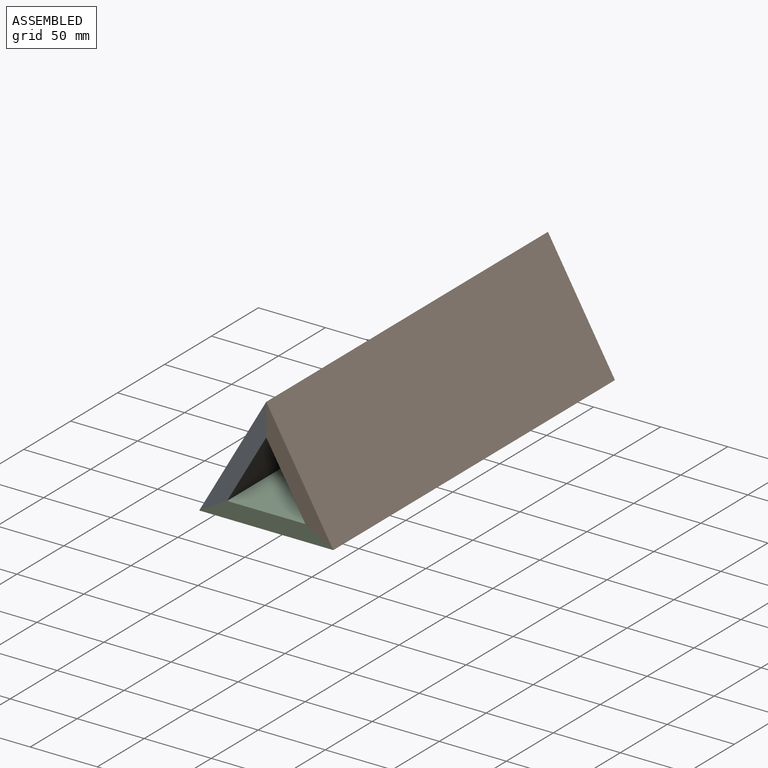
[diagram: assembled view]
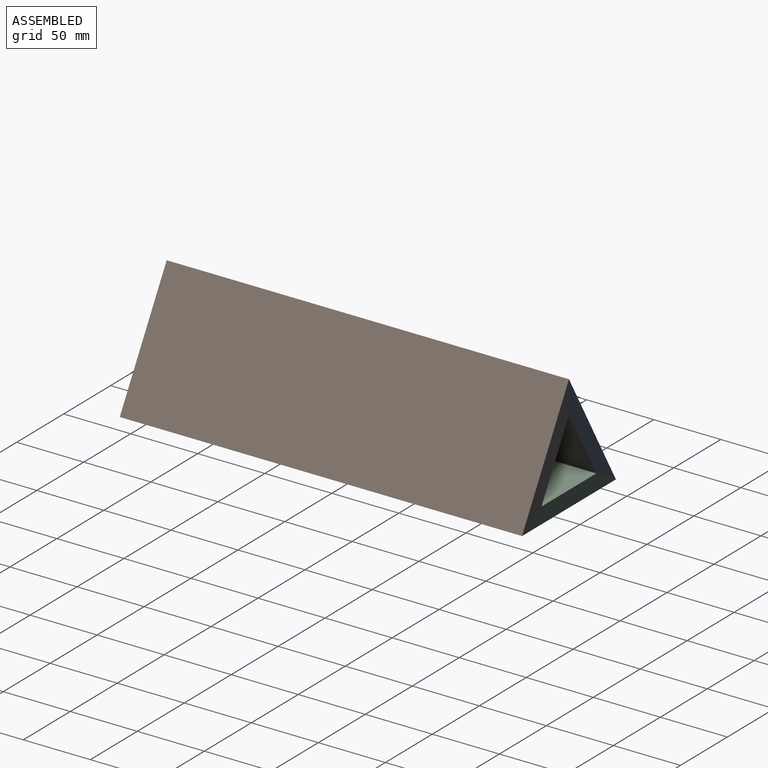
[diagram: assembled view, second angle]
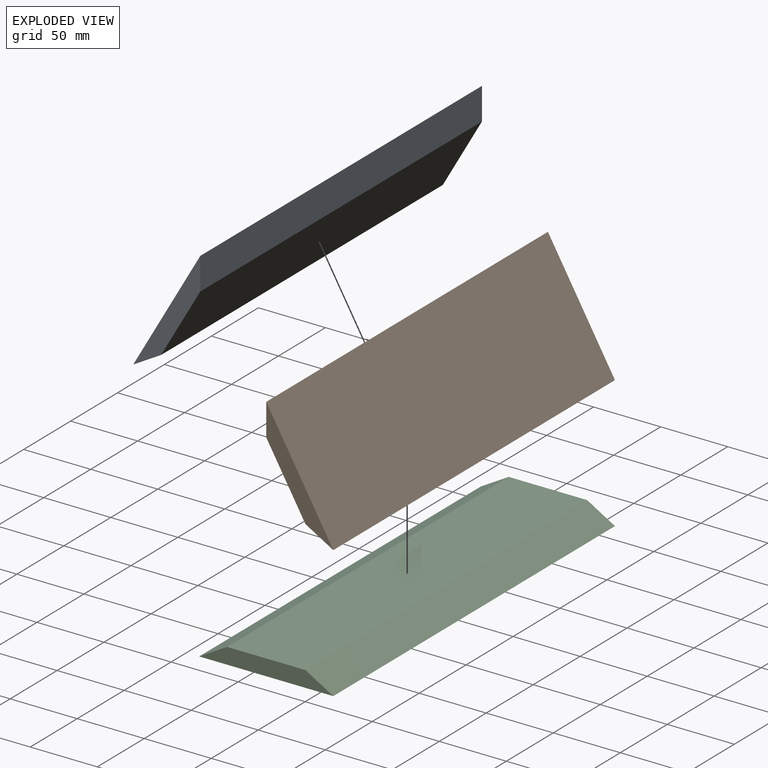
[diagram: exploded view]
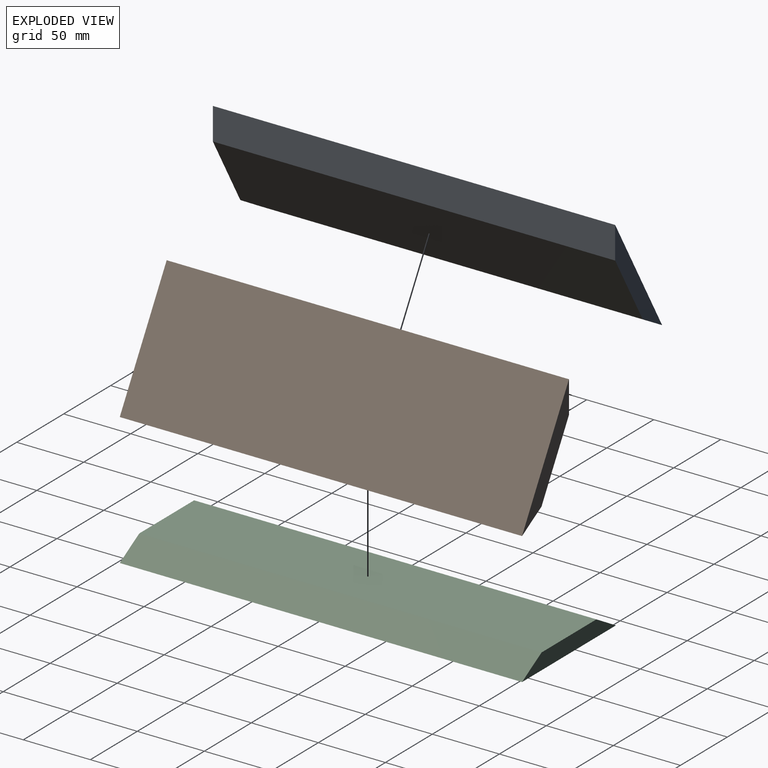
[diagram: exploded view, second angle]
ASSEMBLY  parts=3 mates=2
PART A: 6 faces, bbox 100x300x12 mm
  f0: plane 100x12mm, normal (0,-1,0), area 950.6mm2, adj f1,f3,f4,f5
  f1: plane 300x58.43mm, normal (0,0,1), area 17529.2mm2, adj f0,f2,f4,f5
  f2: plane 100x12mm, normal (0,1,0), area 950.6mm2, adj f1,f3,f4,f5
  f3: plane 300x100mm, normal (0,0,-1), area 30000mm2, adj f0,f2,f4,f5
  f4: plane 300x20.78mm, normal (-0.5,0,0.87), area 7200mm2, adj f0,f1,f2,f3
  f5: plane 300x20.78mm, normal (0.5,0,0.87), area 7200mm2, adj f0,f1,f2,f3
PART B: same geometry as A
PART C: same geometry as A
PLACE A rot(axis=(0,1,0),120deg) t=(-9.46,7.78,70.63)mm
PLACE B rot(axis=(0,-1,0),120deg) t=(40.54,7.78,70.63)mm
PLACE C t=(15.54,7.78,27.32)mm
MATE fastened A.f5 <-> C.f4  axis (0.5,0,-0.87) through (-24.07,7.78,33.32)mm
MATE fastened C.f5 <-> B.f4  axis (0.5,0,0.87) through (55.15,7.78,33.32)mm
